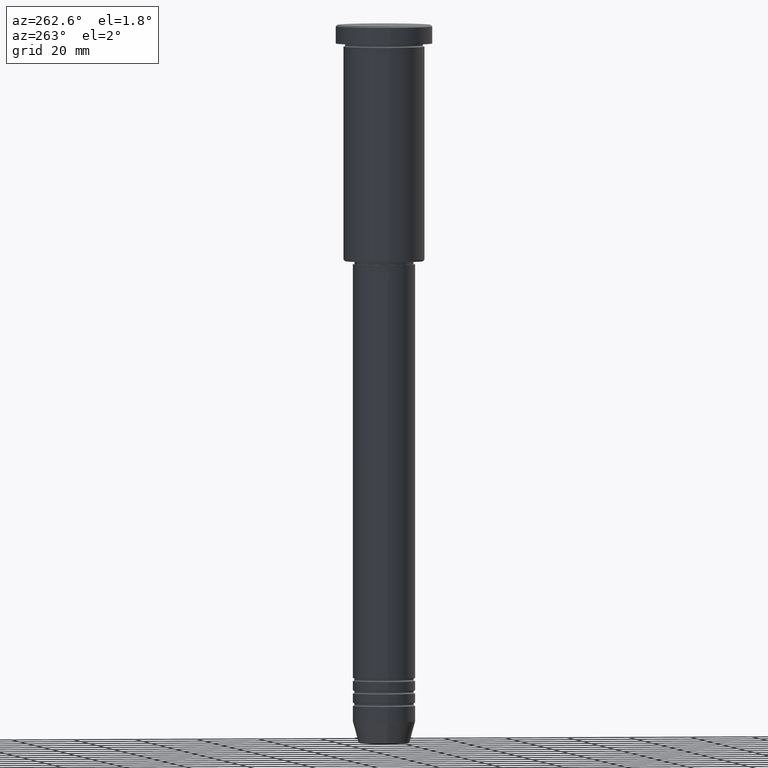
[diagram: clean part render]
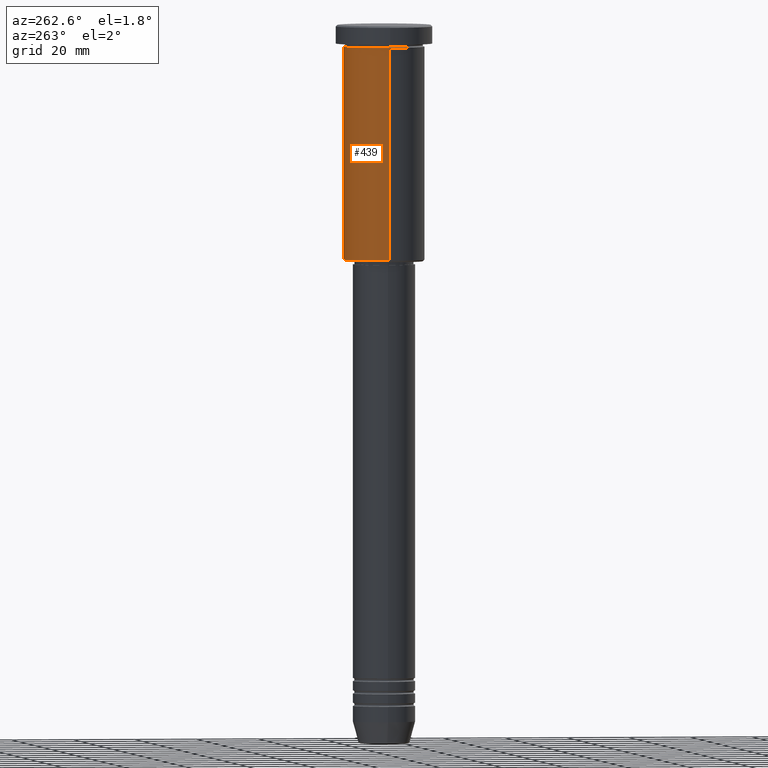
[diagram: same view with one face highlighted and labeled with its STEP entity id]
A machine part, auxiliary view. The second image highlights one B-rep face of the part: STEP entity #439.
In plain terms, the highlighted cylindrical surface (partial cylindrical patch) has radius 13 mm, axis along (-0, -0, 1).
Its self-contained STEP definition (entity closure, byte-faithful):
#72 = ORIENTED_EDGE ( 'NONE', *, *, #819, .T. ) ;
#76 = CARTESIAN_POINT ( 'NONE',  ( 0.000000000000000000, 0.000000000000000000, 0.000000000000000000 ) ) ;
#86 = DIRECTION ( 'NONE',  ( 1.000000000000000000, 0.000000000000000000, 0.000000000000000000 ) ) ;
#93 = AXIS2_PLACEMENT_3D ( 'NONE', #222, #143, #874 ) ;
#113 = VECTOR ( 'NONE', #653, 1000.000000000000000 ) ;
#143 = DIRECTION ( 'NONE',  ( -0.000000000000000000, -0.000000000000000000, 1.000000000000000000 ) ) ;
#198 = EDGE_CURVE ( 'NONE', #837, #651, #442, .T. ) ;
#222 = CARTESIAN_POINT ( 'NONE',  ( 0.000000000000000000, 0.000000000000000000, -6.999999999999995559 ) ) ;
#308 = VECTOR ( 'NONE', #494, 1000.000000000000000 ) ;
#407 = CARTESIAN_POINT ( 'NONE',  ( 0.000000000000000000, 0.000000000000000000, -75.49999999999998579 ) ) ;
#439 = ADVANCED_FACE ( 'NONE', ( #913 ), #655, .T. ) ;
#442 = CIRCLE ( 'NONE', #642, 13.00000000000000178 ) ;
#494 = DIRECTION ( 'NONE',  ( -0.000000000000000000, -0.000000000000000000, 1.000000000000000000 ) ) ;
#497 = CARTESIAN_POINT ( 'NONE',  ( 13.00000000000000178, 0.000000000000000000, -6.999999999999995559 ) ) ;
#505 = DIRECTION ( 'NONE',  ( -0.000000000000000000, -0.000000000000000000, 1.000000000000000000 ) ) ;
#555 = DIRECTION ( 'NONE',  ( -0.000000000000000000, -0.000000000000000000, 1.000000000000000000 ) ) ;
#599 = CARTESIAN_POINT ( 'NONE',  ( 13.00000000000000178, 0.000000000000000000, -75.49999999999998579 ) ) ;
#603 = EDGE_CURVE ( 'NONE', #612, #1153, #611, .T. ) ;
#611 = CIRCLE ( 'NONE', #93, 13.00000000000000178 ) ;
#612 = VERTEX_POINT ( 'NONE', #497 ) ;
#627 = CARTESIAN_POINT ( 'NONE',  ( -13.00000000000000178, 1.592040838891559293E-15, -6.999999999999995559 ) ) ;
#642 = AXIS2_PLACEMENT_3D ( 'NONE', #407, #505, #703 ) ;
#651 = VERTEX_POINT ( 'NONE', #1135 ) ;
#653 = DIRECTION ( 'NONE',  ( -0.000000000000000000, -0.000000000000000000, 1.000000000000000000 ) ) ;
#655 = CYLINDRICAL_SURFACE ( 'NONE', #1156, 13.00000000000000178 ) ;
#664 = EDGE_LOOP ( 'NONE', ( #1021, #72, #824, #725 ) ) ;
#685 = CARTESIAN_POINT ( 'NONE',  ( 13.00000000000000178, 0.000000000000000000, 0.000000000000000000 ) ) ;
#695 = LINE ( 'NONE', #685, #308 ) ;
#703 = DIRECTION ( 'NONE',  ( -1.000000000000000000, 0.000000000000000000, 0.000000000000000000 ) ) ;
#725 = ORIENTED_EDGE ( 'NONE', *, *, #930, .F. ) ;
#819 = EDGE_CURVE ( 'NONE', #651, #1153, #1022, .T. ) ;
#824 = ORIENTED_EDGE ( 'NONE', *, *, #603, .F. ) ;
#837 = VERTEX_POINT ( 'NONE', #599 ) ;
#874 = DIRECTION ( 'NONE',  ( 1.000000000000000000, 0.000000000000000000, 0.000000000000000000 ) ) ;
#913 = FACE_OUTER_BOUND ( 'NONE', #664, .T. ) ;
#930 = EDGE_CURVE ( 'NONE', #837, #612, #695, .T. ) ;
#1021 = ORIENTED_EDGE ( 'NONE', *, *, #198, .T. ) ;
#1022 = LINE ( 'NONE', #1104, #113 ) ;
#1104 = CARTESIAN_POINT ( 'NONE',  ( -13.00000000000000178, 1.592040838891559293E-15, 0.000000000000000000 ) ) ;
#1135 = CARTESIAN_POINT ( 'NONE',  ( -13.00000000000000178, 1.592040838891559293E-15, -75.49999999999998579 ) ) ;
#1153 = VERTEX_POINT ( 'NONE', #627 ) ;
#1156 = AXIS2_PLACEMENT_3D ( 'NONE', #76, #555, #86 ) ;